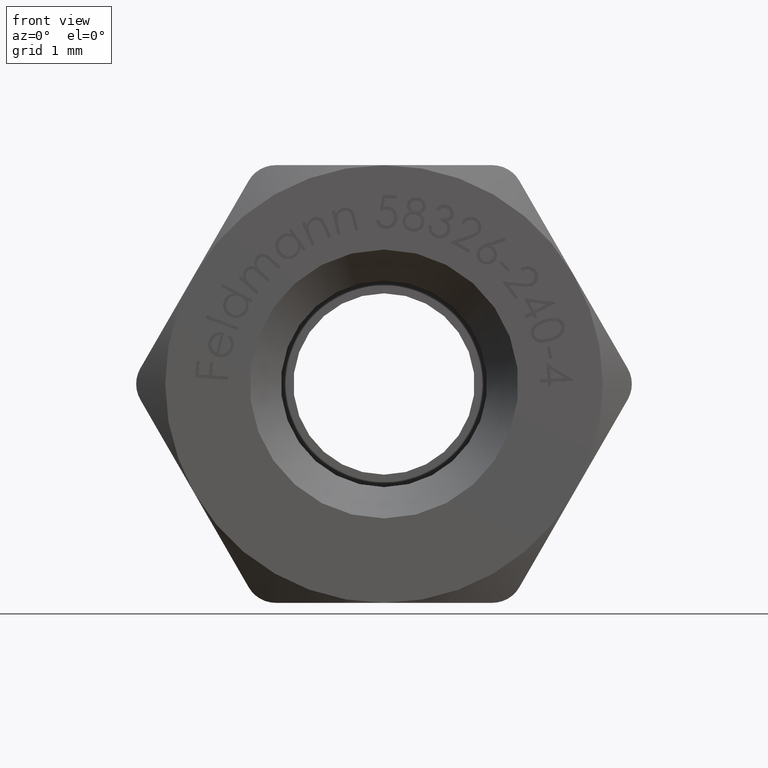
[diagram: clean part render]
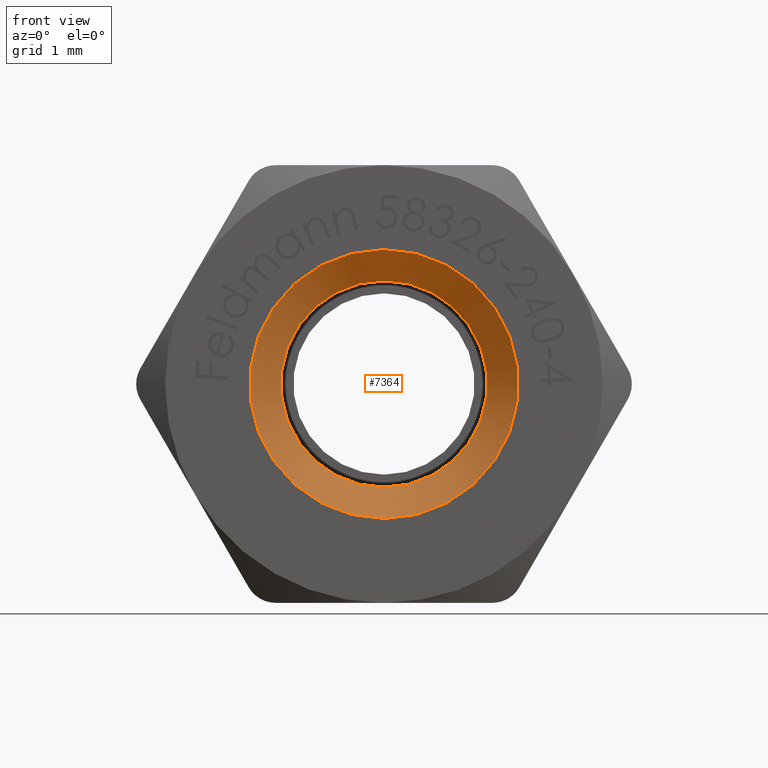
[diagram: same view with one face highlighted and labeled with its STEP entity id]
A machine part, front view. The second image highlights one B-rep face of the part: STEP entity #7364.
In plain terms, the highlighted conical surface has half-angle 45 deg.
Its self-contained STEP definition (entity closure, byte-faithful):
#114 = AXIS2_PLACEMENT_3D ( 'NONE', #4718, #296, #12303 ) ;
#296 = DIRECTION ( 'NONE',  ( 0.000000000000000000, -1.000000000000000000, 0.000000000000000000 ) ) ;
#1555 = EDGE_LOOP ( 'NONE', ( #9986 ) ) ;
#3913 = EDGE_CURVE ( 'NONE', #12922, #12922, #9350, .T. ) ;
#4364 = DIRECTION ( 'NONE',  ( 0.000000000000000000, 0.000000000000000000, 1.000000000000000000 ) ) ;
#4612 = FACE_BOUND ( 'NONE', #1555, .T. ) ;
#4718 = CARTESIAN_POINT ( 'NONE',  ( 0.000000000000000000, -0.9500000000000016209, 0.000000000000000000 ) ) ;
#4755 = CARTESIAN_POINT ( 'NONE',  ( 0.000000000000000000, -0.9500000000000016209, 1.649999999999997913 ) ) ;
#4949 = VERTEX_POINT ( 'NONE', #4755 ) ;
#5189 = AXIS2_PLACEMENT_3D ( 'NONE', #10918, #9782, #11977 ) ;
#6142 = FACE_OUTER_BOUND ( 'NONE', #13951, .T. ) ;
#7364 = ADVANCED_FACE ( 'NONE', ( #6142, #4612 ), #8212, .F. ) ;
#7900 = AXIS2_PLACEMENT_3D ( 'NONE', #14079, #11639, #4364 ) ;
#8212 = CONICAL_SURFACE ( 'NONE', #114, 1.649999999999997913, 0.7853981633974496113 ) ;
#9350 = CIRCLE ( 'NONE', #5189, 2.149999999999997247 ) ;
#9782 = DIRECTION ( 'NONE',  ( 0.000000000000000000, 1.000000000000000000, 0.000000000000000000 ) ) ;
#9986 = ORIENTED_EDGE ( 'NONE', *, *, #14949, .F. ) ;
#10918 = CARTESIAN_POINT ( 'NONE',  ( 0.000000000000000000, -1.449999999999999956, 0.000000000000000000 ) ) ;
#11639 = DIRECTION ( 'NONE',  ( 0.000000000000000000, -1.000000000000000000, 0.000000000000000000 ) ) ;
#11977 = DIRECTION ( 'NONE',  ( 0.000000000000000000, 0.000000000000000000, 1.000000000000000000 ) ) ;
#12303 = DIRECTION ( 'NONE',  ( 0.000000000000000000, 0.000000000000000000, -1.000000000000000000 ) ) ;
#12922 = VERTEX_POINT ( 'NONE', #14319 ) ;
#12936 = CIRCLE ( 'NONE', #7900, 1.649999999999997913 ) ;
#13951 = EDGE_LOOP ( 'NONE', ( #14902 ) ) ;
#14079 = CARTESIAN_POINT ( 'NONE',  ( 0.000000000000000000, -0.9500000000000016209, 0.000000000000000000 ) ) ;
#14319 = CARTESIAN_POINT ( 'NONE',  ( 0.000000000000000000, -1.449999999999999956, 2.149999999999997247 ) ) ;
#14902 = ORIENTED_EDGE ( 'NONE', *, *, #3913, .F. ) ;
#14949 = EDGE_CURVE ( 'NONE', #4949, #4949, #12936, .T. ) ;